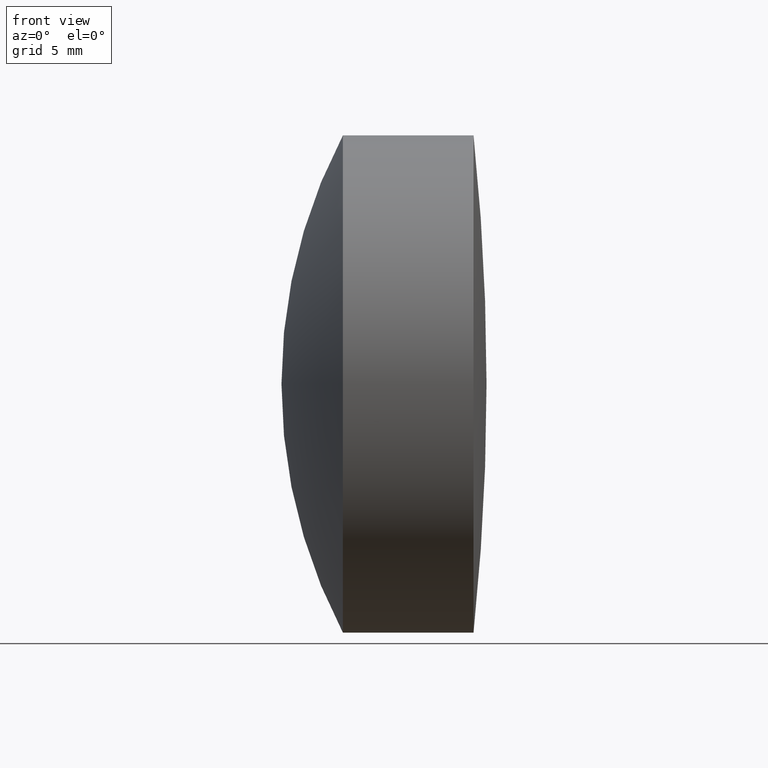
[diagram: clean part render]
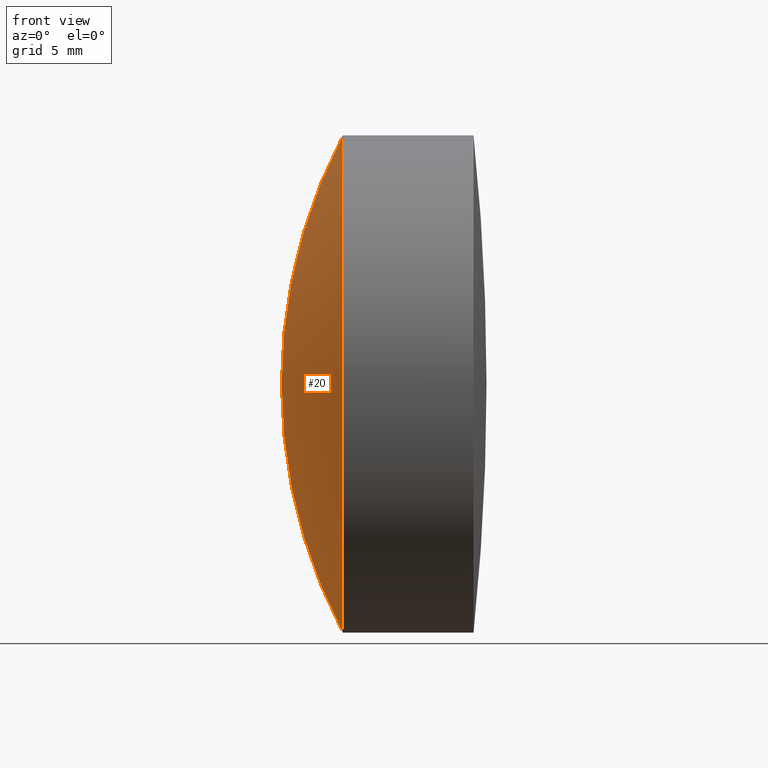
[diagram: same view with one face highlighted and labeled with its STEP entity id]
A machine part, front view. The second image highlights one B-rep face of the part: STEP entity #20.
In plain terms, the highlighted spherical surface has radius 42.95 mm.
Its self-contained STEP definition (entity closure, byte-faithful):
#1 = DIRECTION ( 'NONE',  ( 0.0000000000000000000, 0.0000000000000000000, 1.000000000000000000 ) ) ;
#12 = CIRCLE ( 'NONE', #266, 42.94999999999998200 ) ;
#20 = ADVANCED_FACE ( 'NONE', ( #38 ), #115, .T. ) ;
#32 = DIRECTION ( 'NONE',  ( -1.000000000000000000, -0.0000000000000000000, -0.0000000000000000000 ) ) ;
#38 = FACE_OUTER_BOUND ( 'NONE', #170, .T. ) ;
#52 = DIRECTION ( 'NONE',  ( 0.0000000000000000000, -1.000000000000000000, -1.224646799147353200E-016 ) ) ;
#65 = EDGE_CURVE ( 'NONE', #179, #255, #294, .T. ) ;
#80 = AXIS2_PLACEMENT_3D ( 'NONE', #130, #106, #85 ) ;
#83 = CARTESIAN_POINT ( 'NONE',  ( 256.5849109042255200, 0.0000000000000000000, -20.00000000000000400 ) ) ;
#85 = DIRECTION ( 'NONE',  ( 0.0000000000000000000, 0.0000000000000000000, -1.000000000000000000 ) ) ;
#106 = DIRECTION ( 'NONE',  ( -0.0000000000000000000, -1.000000000000000000, -0.0000000000000000000 ) ) ;
#115 = SPHERICAL_SURFACE ( 'NONE', #80, 42.94999999999998200 ) ;
#121 = CARTESIAN_POINT ( 'NONE',  ( 294.5941532013300200, 0.0000000000000000000, 7.363275609329438300E-015 ) ) ;
#122 = ORIENTED_EDGE ( 'NONE', *, *, #65, .T. ) ;
#130 = CARTESIAN_POINT ( 'NONE',  ( 294.5941532013300200, 0.0000000000000000000, 7.363275609329438300E-015 ) ) ;
#131 = DIRECTION ( 'NONE',  ( 0.0000000000000000000, 1.224646799147353200E-016, -1.000000000000000000 ) ) ;
#142 = CARTESIAN_POINT ( 'NONE',  ( 256.5849109042255200, 0.0000000000000000000, 0.0000000000000000000 ) ) ;
#162 = VERTEX_POINT ( 'NONE', #304 ) ;
#170 = EDGE_LOOP ( 'NONE', ( #122, #330, #306 ) ) ;
#179 = VERTEX_POINT ( 'NONE', #83 ) ;
#206 = AXIS2_PLACEMENT_3D ( 'NONE', #142, #32, #240 ) ;
#213 = CARTESIAN_POINT ( 'NONE',  ( 294.5941532013300200, 0.0000000000000000000, 7.363275609329438300E-015 ) ) ;
#228 = AXIS2_PLACEMENT_3D ( 'NONE', #121, #269, #1 ) ;
#240 = DIRECTION ( 'NONE',  ( 0.0000000000000000000, 0.0000000000000000000, 1.000000000000000000 ) ) ;
#252 = EDGE_CURVE ( 'NONE', #255, #162, #12, .T. ) ;
#255 = VERTEX_POINT ( 'NONE', #332 ) ;
#266 = AXIS2_PLACEMENT_3D ( 'NONE', #213, #52, #131 ) ;
#269 = DIRECTION ( 'NONE',  ( 0.0000000000000000000, 1.000000000000000000, -0.0000000000000000000 ) ) ;
#272 = EDGE_CURVE ( 'NONE', #179, #162, #340, .T. ) ;
#294 = CIRCLE ( 'NONE', #206, 20.00000000000000700 ) ;
#304 = CARTESIAN_POINT ( 'NONE',  ( 251.6441532013300600, 0.0000000000000000000, 4.733346608160498000E-015 ) ) ;
#306 = ORIENTED_EDGE ( 'NONE', *, *, #272, .F. ) ;
#330 = ORIENTED_EDGE ( 'NONE', *, *, #252, .T. ) ;
#332 = CARTESIAN_POINT ( 'NONE',  ( 256.5849109042255200, -2.449293598294706500E-015, 20.00000000000001100 ) ) ;
#340 = CIRCLE ( 'NONE', #228, 42.94999999999998200 ) ;